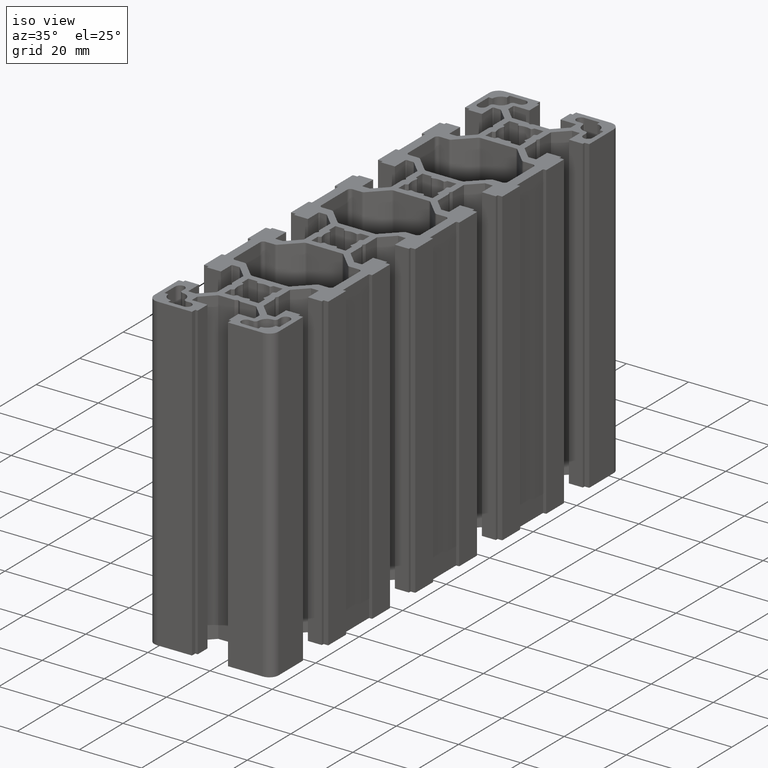
[diagram: clean part render]
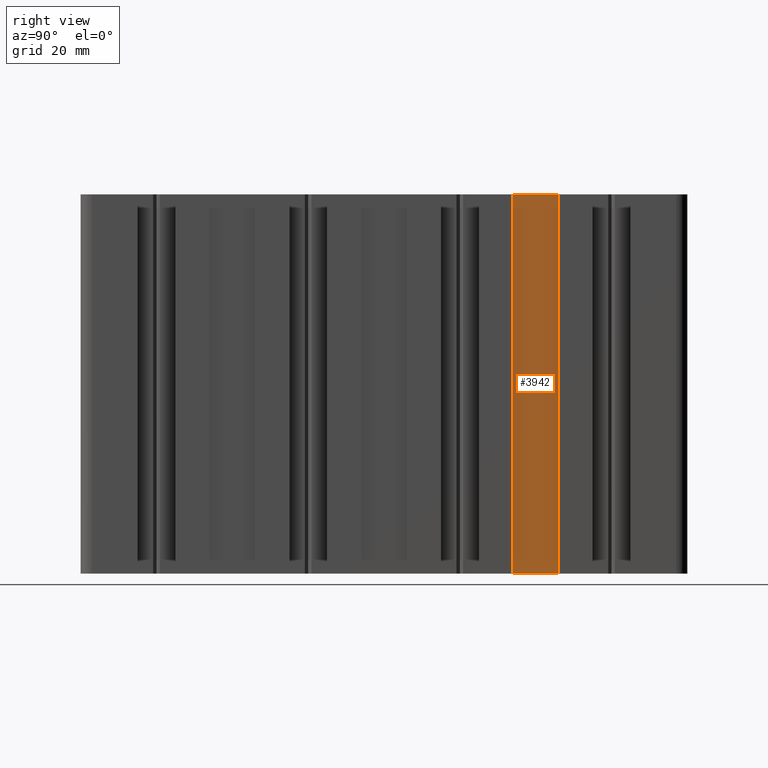
[diagram: tour spotlight — one face highlighted and labeled with its STEP entity id]
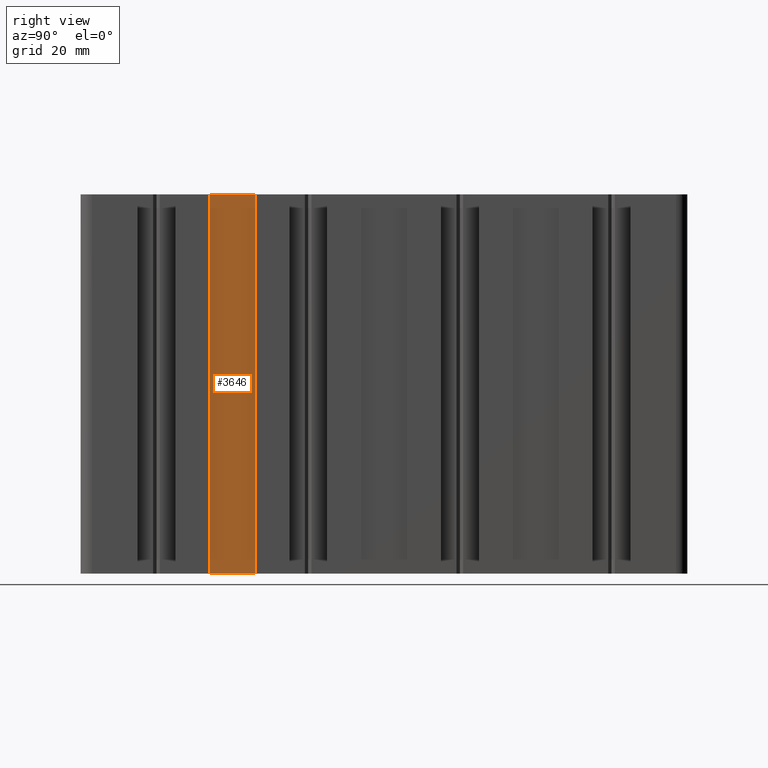
[diagram: tour spotlight — one face highlighted and labeled with its STEP entity id]
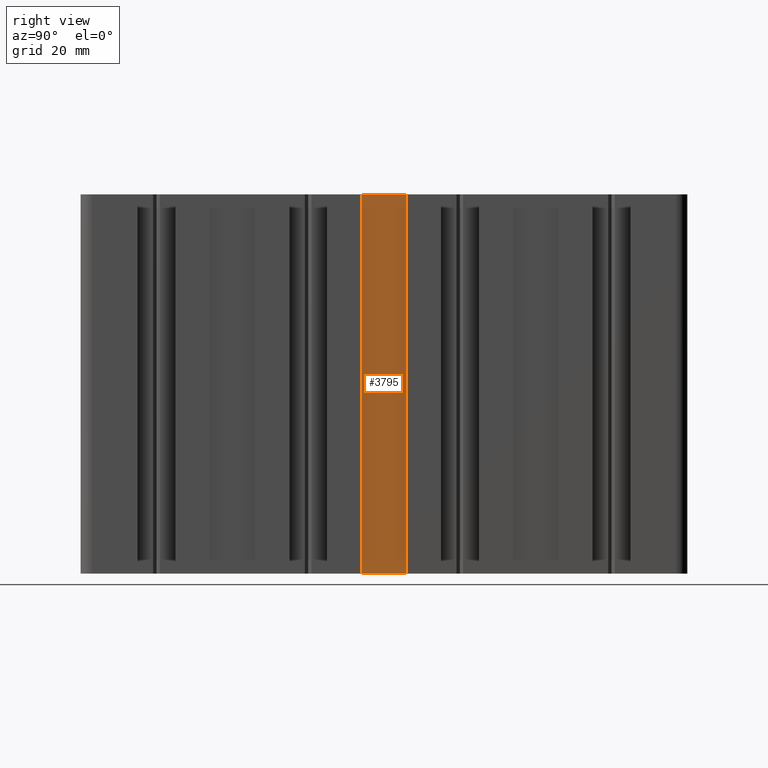
[diagram: tour spotlight — one face highlighted and labeled with its STEP entity id]
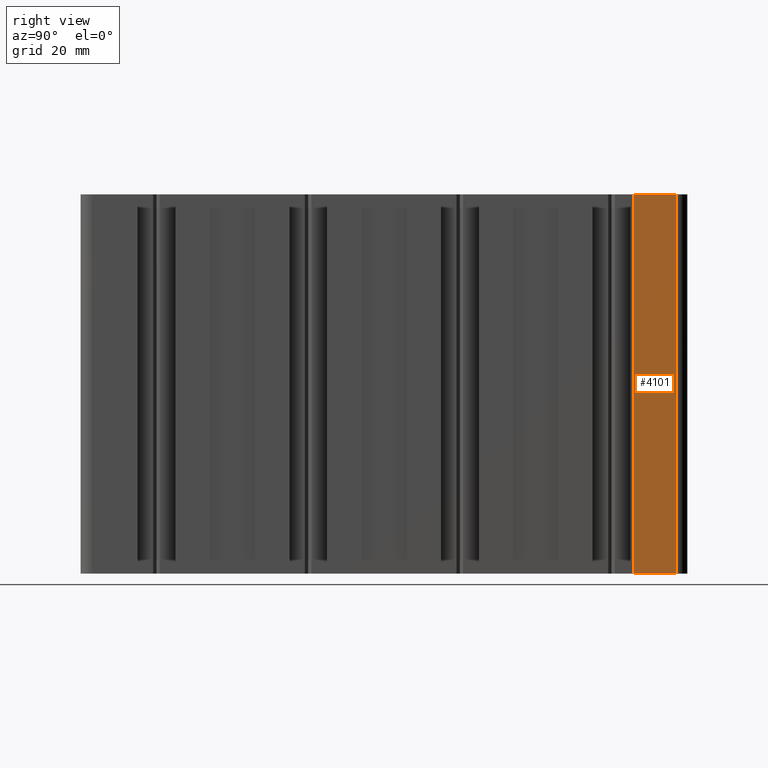
[diagram: tour spotlight — one face highlighted and labeled with its STEP entity id]
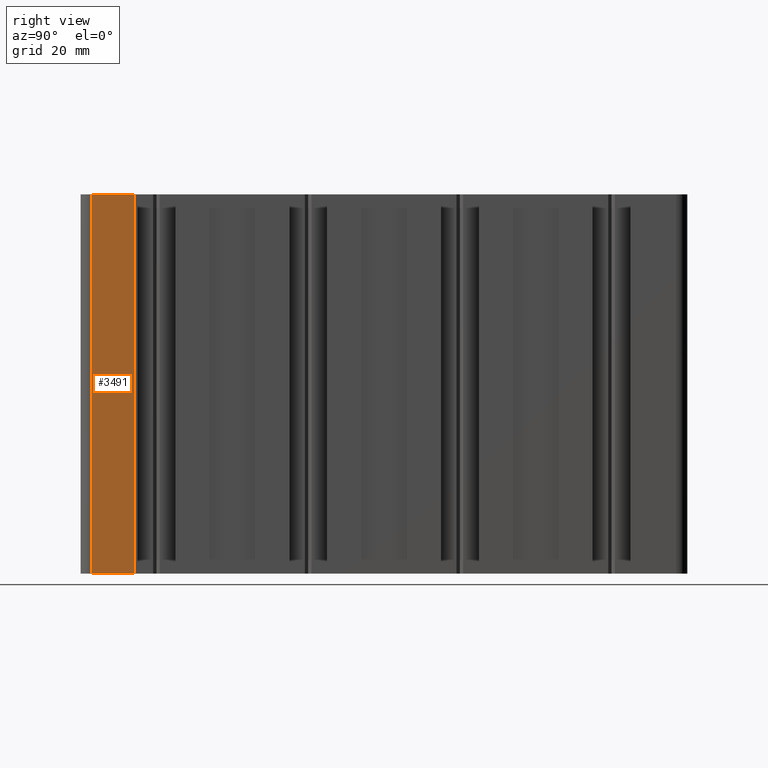
[diagram: tour spotlight — one face highlighted and labeled with its STEP entity id]
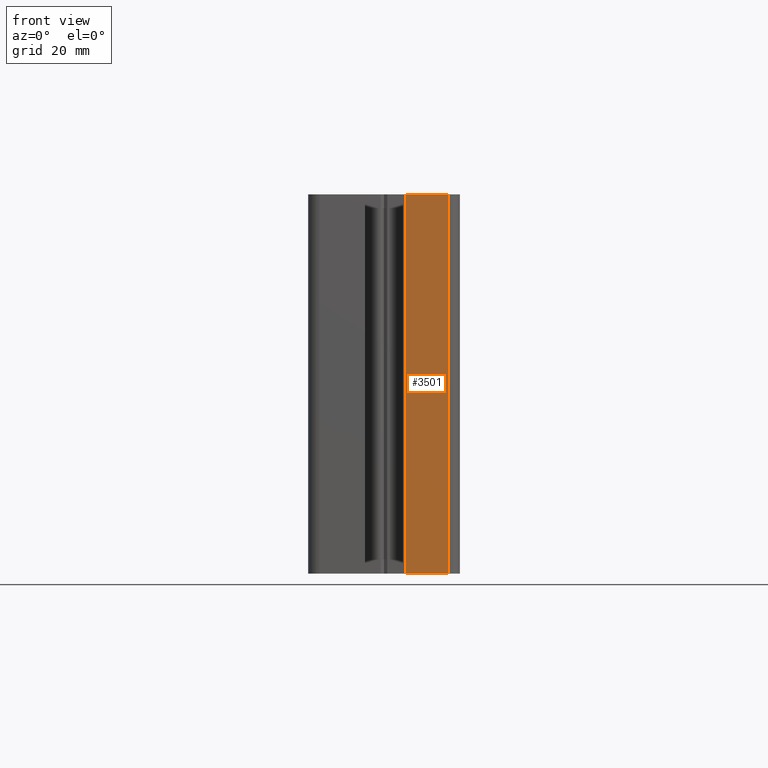
[diagram: tour spotlight — one face highlighted and labeled with its STEP entity id]
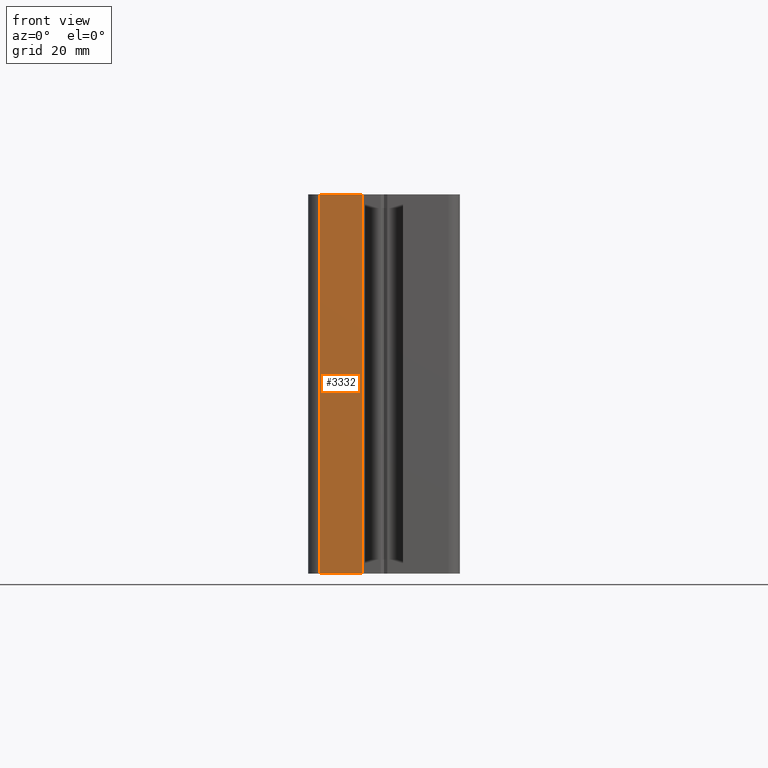
[diagram: tour spotlight — one face highlighted and labeled with its STEP entity id]
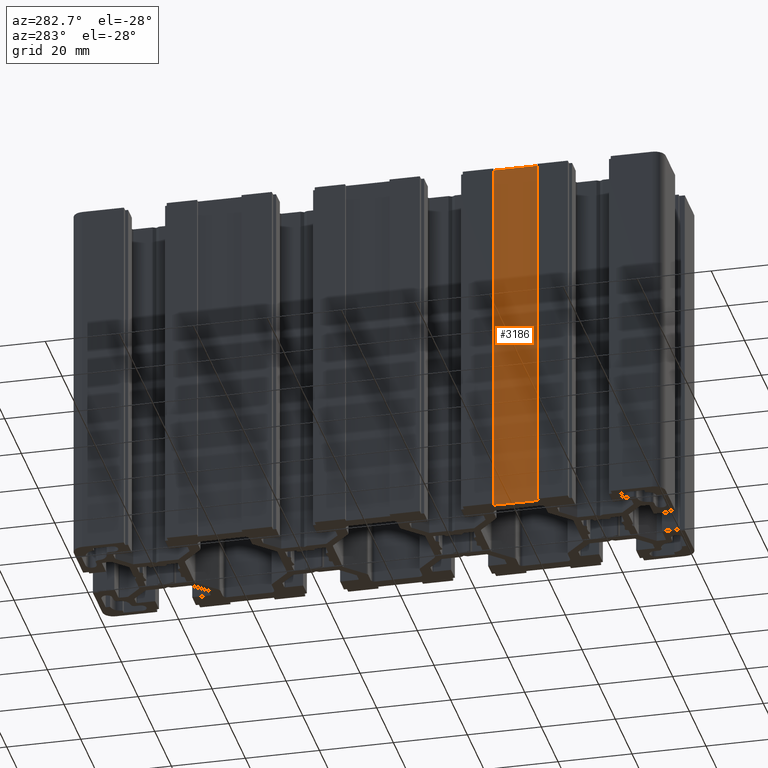
[diagram: tour spotlight — one face highlighted and labeled with its STEP entity id]
A machine part: a face-by-face anatomy tour. The part has 470 B-rep faces; the first image is the clean iso view, then the 8 largest visible faces are spotlighted one at a time (largest first), each with its STEP entity span.

Face 1 — right view, entity #3942. In plain terms, the highlighted planar face has unit normal (-1, 0, 0).
Definition (entity closure, byte-faithful):
#796 = VERTEX_POINT ( 'NONE', #7524 ) ;
#798 = EDGE_CURVE ( 'NONE', #796, #799, #7523, .T. ) ;
#799 = VERTEX_POINT ( 'NONE', #7519 ) ;
#2144 = VERTEX_POINT ( 'NONE', #9911 ) ;
#2146 = EDGE_CURVE ( 'NONE', #2147, #2144, #9910, .T. ) ;
#2147 = VERTEX_POINT ( 'NONE', #9906 ) ;
#3942 = ADVANCED_FACE ( 'NONE', ( #12743 ), #12742, .F. ) ;
#3943 = EDGE_LOOP ( 'NONE', ( #3996, #3997, #3999, #4000 ) ) ;
#3996 = ORIENTED_EDGE ( 'NONE', *, *, #2146, .T. ) ;
#3997 = ORIENTED_EDGE ( 'NONE', *, *, #3998, .F. ) ;
#3998 = EDGE_CURVE ( 'NONE', #799, #2144, #12795, .T. ) ;
#3999 = ORIENTED_EDGE ( 'NONE', *, *, #798, .F. ) ;
#4000 = ORIENTED_EDGE ( 'NONE', *, *, #4015, .T. ) ;
#4015 = EDGE_CURVE ( 'NONE', #796, #2147, #12835, .T. ) ;
#7519 = CARTESIAN_POINT ( 'NONE',  ( 19.00000190734865100, 46.00000228881837900, 100.0000000000000000 ) ) ;
#7520 = DIRECTION ( 'NONE',  ( 0.0000000000000000000, 1.000000000000000000, 0.0000000000000000000 ) ) ;
#7521 = VECTOR ( 'NONE', #7520, 1000.000000000000000 ) ;
#7522 = CARTESIAN_POINT ( 'NONE',  ( 19.00000190734865100, 34.00000228881837900, 100.0000000000000000 ) ) ;
#7523 = LINE ( 'NONE', #7522, #7521 ) ;
#7524 = CARTESIAN_POINT ( 'NONE',  ( 19.00000190734865100, 34.00000228881837900, 100.0000000000000000 ) ) ;
#9906 = CARTESIAN_POINT ( 'NONE',  ( 19.00000190734865100, 34.00000228881837900, 0.0000000000000000000 ) ) ;
#9907 = DIRECTION ( 'NONE',  ( 0.0000000000000000000, 1.000000000000000000, 0.0000000000000000000 ) ) ;
#9908 = VECTOR ( 'NONE', #9907, 1000.000000000000000 ) ;
#9909 = CARTESIAN_POINT ( 'NONE',  ( 19.00000190734865100, 34.00000228881837900, 0.0000000000000000000 ) ) ;
#9910 = LINE ( 'NONE', #9909, #9908 ) ;
#9911 = CARTESIAN_POINT ( 'NONE',  ( 19.00000190734865100, 46.00000228881837900, 0.0000000000000000000 ) ) ;
#12738 = DIRECTION ( 'NONE',  ( 0.0000000000000000000, 0.0000000000000000000, 1.000000000000000000 ) ) ;
#12739 = DIRECTION ( 'NONE',  ( -1.000000000000000000, 0.0000000000000000000, 0.0000000000000000000 ) ) ;
#12740 = CARTESIAN_POINT ( 'NONE',  ( 19.00000190734865100, 34.00000228881837900, 100.0000000000000000 ) ) ;
#12741 = AXIS2_PLACEMENT_3D ( 'NONE', #12740, #12739, #12738 ) ;
#12742 = PLANE ( 'NONE',  #12741 ) ;
#12743 = FACE_OUTER_BOUND ( 'NONE', #3943, .T. ) ;
#12795 = LINE ( 'NONE', #12858, #12857 ) ;
#12832 = DIRECTION ( 'NONE',  ( 0.0000000000000000000, 0.0000000000000000000, -1.000000000000000000 ) ) ;
#12833 = VECTOR ( 'NONE', #12832, 1000.000000000000000 ) ;
#12834 = CARTESIAN_POINT ( 'NONE',  ( 19.00000190734865100, 34.00000228881837900, 100.0000000000000000 ) ) ;
#12835 = LINE ( 'NONE', #12834, #12833 ) ;
#12856 = DIRECTION ( 'NONE',  ( 0.0000000000000000000, 0.0000000000000000000, -1.000000000000000000 ) ) ;
#12857 = VECTOR ( 'NONE', #12856, 1000.000000000000000 ) ;
#12858 = CARTESIAN_POINT ( 'NONE',  ( 19.00000190734865100, 46.00000228881837900, 100.0000000000000000 ) ) ;

Face 2 — right view, entity #3646. In plain terms, the highlighted planar face has unit normal (-1, 0, 0).
Definition (entity closure, byte-faithful):
#732 = VERTEX_POINT ( 'NONE', #7442 ) ;
#734 = EDGE_CURVE ( 'NONE', #732, #735, #7441, .T. ) ;
#735 = VERTEX_POINT ( 'NONE', #7437 ) ;
#2209 = VERTEX_POINT ( 'NONE', #10052 ) ;
#2211 = EDGE_CURVE ( 'NONE', #2212, #2209, #10051, .T. ) ;
#2212 = VERTEX_POINT ( 'NONE', #10047 ) ;
#3643 = EDGE_CURVE ( 'NONE', #732, #2212, #12308, .T. ) ;
#3646 = ADVANCED_FACE ( 'NONE', ( #12304 ), #12303, .F. ) ;
#3647 = EDGE_LOOP ( 'NONE', ( #3648, #3649, #3651, #3652 ) ) ;
#3648 = ORIENTED_EDGE ( 'NONE', *, *, #2211, .T. ) ;
#3649 = ORIENTED_EDGE ( 'NONE', *, *, #3650, .F. ) ;
#3650 = EDGE_CURVE ( 'NONE', #735, #2209, #12364, .T. ) ;
#3651 = ORIENTED_EDGE ( 'NONE', *, *, #734, .F. ) ;
#3652 = ORIENTED_EDGE ( 'NONE', *, *, #3643, .T. ) ;
#7437 = CARTESIAN_POINT ( 'NONE',  ( 19.00000190734865100, -34.00000152587885800, 100.0000000000000000 ) ) ;
#7438 = DIRECTION ( 'NONE',  ( 0.0000000000000000000, 1.000000000000000000, 0.0000000000000000000 ) ) ;
#7439 = VECTOR ( 'NONE', #7438, 1000.000000000000000 ) ;
#7440 = CARTESIAN_POINT ( 'NONE',  ( 19.00000190734865100, -34.00000152587885800, 100.0000000000000000 ) ) ;
#7441 = LINE ( 'NONE', #7440, #7439 ) ;
#7442 = CARTESIAN_POINT ( 'NONE',  ( 19.00000190734865100, -46.00000152587885800, 100.0000000000000000 ) ) ;
#10047 = CARTESIAN_POINT ( 'NONE',  ( 19.00000190734865100, -46.00000152587885800, 0.0000000000000000000 ) ) ;
#10048 = DIRECTION ( 'NONE',  ( 0.0000000000000000000, 1.000000000000000000, 0.0000000000000000000 ) ) ;
#10049 = VECTOR ( 'NONE', #10048, 1000.000000000000000 ) ;
#10050 = CARTESIAN_POINT ( 'NONE',  ( 19.00000190734865100, -34.00000152587885800, 0.0000000000000000000 ) ) ;
#10051 = LINE ( 'NONE', #10050, #10049 ) ;
#10052 = CARTESIAN_POINT ( 'NONE',  ( 19.00000190734865100, -34.00000152587885800, 0.0000000000000000000 ) ) ;
#12299 = DIRECTION ( 'NONE',  ( 0.0000000000000000000, 0.0000000000000000000, 1.000000000000000000 ) ) ;
#12300 = DIRECTION ( 'NONE',  ( -1.000000000000000000, 0.0000000000000000000, 0.0000000000000000000 ) ) ;
#12301 = CARTESIAN_POINT ( 'NONE',  ( 19.00000190734865100, -34.00000152587885800, 100.0000000000000000 ) ) ;
#12302 = AXIS2_PLACEMENT_3D ( 'NONE', #12301, #12300, #12299 ) ;
#12303 = PLANE ( 'NONE',  #12302 ) ;
#12304 = FACE_OUTER_BOUND ( 'NONE', #3647, .T. ) ;
#12305 = DIRECTION ( 'NONE',  ( 0.0000000000000000000, 0.0000000000000000000, -1.000000000000000000 ) ) ;
#12306 = VECTOR ( 'NONE', #12305, 1000.000000000000000 ) ;
#12307 = CARTESIAN_POINT ( 'NONE',  ( 19.00000190734865100, -46.00000152587885800, 100.0000000000000000 ) ) ;
#12308 = LINE ( 'NONE', #12307, #12306 ) ;
#12361 = DIRECTION ( 'NONE',  ( 0.0000000000000000000, 0.0000000000000000000, -1.000000000000000000 ) ) ;
#12362 = VECTOR ( 'NONE', #12361, 1000.000000000000000 ) ;
#12363 = CARTESIAN_POINT ( 'NONE',  ( 19.00000190734865100, -34.00000152587885800, 100.0000000000000000 ) ) ;
#12364 = LINE ( 'NONE', #12363, #12362 ) ;

Face 3 — right view, entity #3795. In plain terms, the highlighted planar face has unit normal (-1, 0, 0).
Definition (entity closure, byte-faithful):
#751 = VERTEX_POINT ( 'NONE', #7418 ) ;
#753 = EDGE_CURVE ( 'NONE', #751, #754, #7417, .T. ) ;
#754 = VERTEX_POINT ( 'NONE', #7475 ) ;
#2163 = VERTEX_POINT ( 'NONE', #9942 ) ;
#2190 = VERTEX_POINT ( 'NONE', #10022 ) ;
#2192 = EDGE_CURVE ( 'NONE', #2163, #2190, #10021, .T. ) ;
#3792 = EDGE_CURVE ( 'NONE', #751, #2163, #12553, .T. ) ;
#3795 = ADVANCED_FACE ( 'NONE', ( #12549 ), #12548, .F. ) ;
#3796 = EDGE_LOOP ( 'NONE', ( #3797, #3798, #3850, #3851 ) ) ;
#3797 = ORIENTED_EDGE ( 'NONE', *, *, #2192, .T. ) ;
#3798 = ORIENTED_EDGE ( 'NONE', *, *, #3799, .F. ) ;
#3799 = EDGE_CURVE ( 'NONE', #754, #2190, #12543, .T. ) ;
#3850 = ORIENTED_EDGE ( 'NONE', *, *, #753, .F. ) ;
#3851 = ORIENTED_EDGE ( 'NONE', *, *, #3792, .T. ) ;
#7417 = LINE ( 'NONE', #7478, #7477 ) ;
#7418 = CARTESIAN_POINT ( 'NONE',  ( 19.00000190734865100, -6.000000000000000000, 100.0000000000000000 ) ) ;
#7475 = CARTESIAN_POINT ( 'NONE',  ( 19.00000190734865100, 6.000000000000000000, 100.0000000000000000 ) ) ;
#7476 = DIRECTION ( 'NONE',  ( 0.0000000000000000000, 1.000000000000000000, 0.0000000000000000000 ) ) ;
#7477 = VECTOR ( 'NONE', #7476, 1000.000000000000000 ) ;
#7478 = CARTESIAN_POINT ( 'NONE',  ( 19.00000190734865100, 6.000000000000000000, 100.0000000000000000 ) ) ;
#9942 = CARTESIAN_POINT ( 'NONE',  ( 19.00000190734865100, -6.000000000000000000, 0.0000000000000000000 ) ) ;
#10018 = DIRECTION ( 'NONE',  ( 0.0000000000000000000, 1.000000000000000000, 0.0000000000000000000 ) ) ;
#10019 = VECTOR ( 'NONE', #10018, 1000.000000000000000 ) ;
#10020 = CARTESIAN_POINT ( 'NONE',  ( 19.00000190734865100, 6.000000000000000000, 0.0000000000000000000 ) ) ;
#10021 = LINE ( 'NONE', #10020, #10019 ) ;
#10022 = CARTESIAN_POINT ( 'NONE',  ( 19.00000190734865100, 6.000000000000000000, 0.0000000000000000000 ) ) ;
#12540 = DIRECTION ( 'NONE',  ( 0.0000000000000000000, 0.0000000000000000000, -1.000000000000000000 ) ) ;
#12541 = VECTOR ( 'NONE', #12540, 1000.000000000000000 ) ;
#12542 = CARTESIAN_POINT ( 'NONE',  ( 19.00000190734865100, 6.000000000000000000, 100.0000000000000000 ) ) ;
#12543 = LINE ( 'NONE', #12542, #12541 ) ;
#12544 = DIRECTION ( 'NONE',  ( 0.0000000000000000000, 0.0000000000000000000, 1.000000000000000000 ) ) ;
#12545 = DIRECTION ( 'NONE',  ( -1.000000000000000000, 0.0000000000000000000, 0.0000000000000000000 ) ) ;
#12546 = CARTESIAN_POINT ( 'NONE',  ( 19.00000190734865100, 6.000000000000000000, 100.0000000000000000 ) ) ;
#12547 = AXIS2_PLACEMENT_3D ( 'NONE', #12546, #12545, #12544 ) ;
#12548 = PLANE ( 'NONE',  #12547 ) ;
#12549 = FACE_OUTER_BOUND ( 'NONE', #3796, .T. ) ;
#12550 = DIRECTION ( 'NONE',  ( 0.0000000000000000000, 0.0000000000000000000, -1.000000000000000000 ) ) ;
#12551 = VECTOR ( 'NONE', #12550, 1000.000000000000000 ) ;
#12552 = CARTESIAN_POINT ( 'NONE',  ( 19.00000190734865100, -6.000000000000000000, 100.0000000000000000 ) ) ;
#12553 = LINE ( 'NONE', #12552, #12551 ) ;

Face 4 — right view, entity #4101. In plain terms, the highlighted planar face has unit normal (-1, 0, 0).
Definition (entity closure, byte-faithful):
#905 = EDGE_CURVE ( 'NONE', #933, #906, #7716, .T. ) ;
#906 = VERTEX_POINT ( 'NONE', #7712 ) ;
#933 = VERTEX_POINT ( 'NONE', #7727 ) ;
#2011 = VERTEX_POINT ( 'NONE', #9702 ) ;
#2036 = VERTEX_POINT ( 'NONE', #9722 ) ;
#2038 = EDGE_CURVE ( 'NONE', #2011, #2036, #9721, .T. ) ;
#4098 = EDGE_CURVE ( 'NONE', #933, #2011, #12981, .T. ) ;
#4101 = ADVANCED_FACE ( 'NONE', ( #12977 ), #12976, .F. ) ;
#4102 = EDGE_LOOP ( 'NONE', ( #4152, #4153, #4155, #4156 ) ) ;
#4152 = ORIENTED_EDGE ( 'NONE', *, *, #2038, .T. ) ;
#4153 = ORIENTED_EDGE ( 'NONE', *, *, #4154, .F. ) ;
#4154 = EDGE_CURVE ( 'NONE', #906, #2036, #13030, .T. ) ;
#4155 = ORIENTED_EDGE ( 'NONE', *, *, #905, .F. ) ;
#4156 = ORIENTED_EDGE ( 'NONE', *, *, #4098, .T. ) ;
#7712 = CARTESIAN_POINT ( 'NONE',  ( 20.00000000000000000, 77.00000209808349900, 100.0000000000000000 ) ) ;
#7713 = DIRECTION ( 'NONE',  ( 0.0000000000000000000, 1.000000000000000000, 0.0000000000000000000 ) ) ;
#7714 = VECTOR ( 'NONE', #7713, 1000.000000000000000 ) ;
#7715 = CARTESIAN_POINT ( 'NONE',  ( 20.00000000000000000, 65.80000228881836200, 100.0000000000000000 ) ) ;
#7716 = LINE ( 'NONE', #7715, #7714 ) ;
#7727 = CARTESIAN_POINT ( 'NONE',  ( 20.00000000000000000, 65.80000228881836200, 100.0000000000000000 ) ) ;
#9702 = CARTESIAN_POINT ( 'NONE',  ( 20.00000000000000000, 65.80000228881836200, 0.0000000000000000000 ) ) ;
#9720 = CARTESIAN_POINT ( 'NONE',  ( 20.00000000000000000, 65.80000228881836200, 0.0000000000000000000 ) ) ;
#9721 = LINE ( 'NONE', #9720, #9782 ) ;
#9722 = CARTESIAN_POINT ( 'NONE',  ( 20.00000000000000000, 77.00000209808349900, 0.0000000000000000000 ) ) ;
#9781 = DIRECTION ( 'NONE',  ( 0.0000000000000000000, 1.000000000000000000, 0.0000000000000000000 ) ) ;
#9782 = VECTOR ( 'NONE', #9781, 1000.000000000000000 ) ;
#12972 = DIRECTION ( 'NONE',  ( 0.0000000000000000000, 0.0000000000000000000, 1.000000000000000000 ) ) ;
#12973 = DIRECTION ( 'NONE',  ( -1.000000000000000000, 0.0000000000000000000, 0.0000000000000000000 ) ) ;
#12974 = CARTESIAN_POINT ( 'NONE',  ( 20.00000000000000000, 65.80000228881836200, 100.0000000000000000 ) ) ;
#12975 = AXIS2_PLACEMENT_3D ( 'NONE', #12974, #12973, #12972 ) ;
#12976 = PLANE ( 'NONE',  #12975 ) ;
#12977 = FACE_OUTER_BOUND ( 'NONE', #4102, .T. ) ;
#12978 = DIRECTION ( 'NONE',  ( 0.0000000000000000000, 0.0000000000000000000, -1.000000000000000000 ) ) ;
#12979 = VECTOR ( 'NONE', #12978, 1000.000000000000000 ) ;
#12980 = CARTESIAN_POINT ( 'NONE',  ( 20.00000000000000000, 65.80000228881836200, 100.0000000000000000 ) ) ;
#12981 = LINE ( 'NONE', #12980, #12979 ) ;
#13027 = DIRECTION ( 'NONE',  ( 0.0000000000000000000, 0.0000000000000000000, -1.000000000000000000 ) ) ;
#13028 = VECTOR ( 'NONE', #13027, 1000.000000000000000 ) ;
#13029 = CARTESIAN_POINT ( 'NONE',  ( 20.00000000000000000, 77.00000209808349900, 100.0000000000000000 ) ) ;
#13030 = LINE ( 'NONE', #13029, #13028 ) ;

Face 5 — right view, entity #3491. In plain terms, the highlighted planar face has unit normal (-1, 0, 0).
Definition (entity closure, byte-faithful):
#626 = VERTEX_POINT ( 'NONE', #7248 ) ;
#694 = EDGE_CURVE ( 'NONE', #626, #695, #7379, .T. ) ;
#695 = VERTEX_POINT ( 'NONE', #7375 ) ;
#2249 = VERTEX_POINT ( 'NONE', #10108 ) ;
#2251 = EDGE_CURVE ( 'NONE', #2317, #2249, #10107, .T. ) ;
#2317 = VERTEX_POINT ( 'NONE', #10246 ) ;
#3488 = EDGE_CURVE ( 'NONE', #626, #2317, #12073, .T. ) ;
#3491 = ADVANCED_FACE ( 'NONE', ( #12069 ), #12068, .F. ) ;
#3492 = EDGE_LOOP ( 'NONE', ( #3493, #3494, #3496, #3547 ) ) ;
#3493 = ORIENTED_EDGE ( 'NONE', *, *, #2251, .T. ) ;
#3494 = ORIENTED_EDGE ( 'NONE', *, *, #3495, .F. ) ;
#3495 = EDGE_CURVE ( 'NONE', #695, #2249, #12127, .T. ) ;
#3496 = ORIENTED_EDGE ( 'NONE', *, *, #694, .F. ) ;
#3547 = ORIENTED_EDGE ( 'NONE', *, *, #3488, .T. ) ;
#7248 = CARTESIAN_POINT ( 'NONE',  ( 20.00000000000000400, -77.00000133514396300, 100.0000000000000000 ) ) ;
#7375 = CARTESIAN_POINT ( 'NONE',  ( 20.00000000000000000, -65.80000152587884100, 100.0000000000000000 ) ) ;
#7376 = DIRECTION ( 'NONE',  ( 0.0000000000000000000, 1.000000000000000000, 0.0000000000000000000 ) ) ;
#7377 = VECTOR ( 'NONE', #7376, 1000.000000000000000 ) ;
#7378 = CARTESIAN_POINT ( 'NONE',  ( 20.00000000000000000, -65.80000152587884100, 100.0000000000000000 ) ) ;
#7379 = LINE ( 'NONE', #7378, #7377 ) ;
#10104 = DIRECTION ( 'NONE',  ( 0.0000000000000000000, 1.000000000000000000, 0.0000000000000000000 ) ) ;
#10105 = VECTOR ( 'NONE', #10104, 1000.000000000000000 ) ;
#10106 = CARTESIAN_POINT ( 'NONE',  ( 20.00000000000000000, -65.80000152587884100, 0.0000000000000000000 ) ) ;
#10107 = LINE ( 'NONE', #10106, #10105 ) ;
#10108 = CARTESIAN_POINT ( 'NONE',  ( 20.00000000000000000, -65.80000152587884100, 0.0000000000000000000 ) ) ;
#10246 = CARTESIAN_POINT ( 'NONE',  ( 20.00000000000000400, -77.00000133514396300, 0.0000000000000000000 ) ) ;
#12068 = PLANE ( 'NONE',  #12131 ) ;
#12069 = FACE_OUTER_BOUND ( 'NONE', #3492, .T. ) ;
#12070 = DIRECTION ( 'NONE',  ( 0.0000000000000000000, 0.0000000000000000000, -1.000000000000000000 ) ) ;
#12071 = VECTOR ( 'NONE', #12070, 1000.000000000000000 ) ;
#12072 = CARTESIAN_POINT ( 'NONE',  ( 20.00000000000000400, -77.00000133514396300, 100.0000000000000000 ) ) ;
#12073 = LINE ( 'NONE', #12072, #12071 ) ;
#12124 = DIRECTION ( 'NONE',  ( 0.0000000000000000000, 0.0000000000000000000, -1.000000000000000000 ) ) ;
#12125 = VECTOR ( 'NONE', #12124, 1000.000000000000000 ) ;
#12126 = CARTESIAN_POINT ( 'NONE',  ( 20.00000000000000000, -65.80000152587884100, 100.0000000000000000 ) ) ;
#12127 = LINE ( 'NONE', #12126, #12125 ) ;
#12128 = DIRECTION ( 'NONE',  ( 0.0000000000000000000, 0.0000000000000000000, 1.000000000000000000 ) ) ;
#12129 = DIRECTION ( 'NONE',  ( -1.000000000000000000, 0.0000000000000000000, 0.0000000000000000000 ) ) ;
#12130 = CARTESIAN_POINT ( 'NONE',  ( 20.00000000000000000, -65.80000152587884100, 100.0000000000000000 ) ) ;
#12131 = AXIS2_PLACEMENT_3D ( 'NONE', #12130, #12129, #12128 ) ;

Face 6 — front view, entity #3501. In plain terms, the highlighted planar face has unit normal (0, 1, 0).
Definition (entity closure, byte-faithful):
#620 = VERTEX_POINT ( 'NONE', #7197 ) ;
#622 = EDGE_CURVE ( 'NONE', #620, #623, #7258, .T. ) ;
#623 = VERTEX_POINT ( 'NONE', #7254 ) ;
#2320 = VERTEX_POINT ( 'NONE', #10240 ) ;
#2322 = EDGE_CURVE ( 'NONE', #2323, #2320, #10239, .T. ) ;
#2323 = VERTEX_POINT ( 'NONE', #10235 ) ;
#3498 = EDGE_CURVE ( 'NONE', #620, #2323, #12123, .T. ) ;
#3501 = ADVANCED_FACE ( 'NONE', ( #12119 ), #12118, .F. ) ;
#3502 = EDGE_LOOP ( 'NONE', ( #3503, #3504, #3506, #3507 ) ) ;
#3503 = ORIENTED_EDGE ( 'NONE', *, *, #2322, .T. ) ;
#3504 = ORIENTED_EDGE ( 'NONE', *, *, #3505, .F. ) ;
#3505 = EDGE_CURVE ( 'NONE', #623, #2320, #12113, .T. ) ;
#3506 = ORIENTED_EDGE ( 'NONE', *, *, #622, .F. ) ;
#3507 = ORIENTED_EDGE ( 'NONE', *, *, #3498, .T. ) ;
#7197 = CARTESIAN_POINT ( 'NONE',  ( 5.800000190734873900, -80.00000133514396300, 100.0000000000000000 ) ) ;
#7254 = CARTESIAN_POINT ( 'NONE',  ( 17.00000000000000000, -80.00000133514396300, 100.0000000000000000 ) ) ;
#7255 = DIRECTION ( 'NONE',  ( 1.000000000000000000, 0.0000000000000000000, 0.0000000000000000000 ) ) ;
#7256 = VECTOR ( 'NONE', #7255, 1000.000000000000000 ) ;
#7257 = CARTESIAN_POINT ( 'NONE',  ( 17.00000000000000000, -80.00000133514396300, 100.0000000000000000 ) ) ;
#7258 = LINE ( 'NONE', #7257, #7256 ) ;
#10235 = CARTESIAN_POINT ( 'NONE',  ( 5.800000190734873900, -80.00000133514396300, 0.0000000000000000000 ) ) ;
#10236 = DIRECTION ( 'NONE',  ( 1.000000000000000000, 0.0000000000000000000, 0.0000000000000000000 ) ) ;
#10237 = VECTOR ( 'NONE', #10236, 1000.000000000000000 ) ;
#10238 = CARTESIAN_POINT ( 'NONE',  ( 17.00000000000000000, -80.00000133514396300, 0.0000000000000000000 ) ) ;
#10239 = LINE ( 'NONE', #10238, #10237 ) ;
#10240 = CARTESIAN_POINT ( 'NONE',  ( 17.00000000000000000, -80.00000133514396300, 0.0000000000000000000 ) ) ;
#12110 = DIRECTION ( 'NONE',  ( 0.0000000000000000000, 0.0000000000000000000, -1.000000000000000000 ) ) ;
#12111 = VECTOR ( 'NONE', #12110, 1000.000000000000000 ) ;
#12112 = CARTESIAN_POINT ( 'NONE',  ( 17.00000000000000000, -80.00000133514396300, 100.0000000000000000 ) ) ;
#12113 = LINE ( 'NONE', #12112, #12111 ) ;
#12114 = DIRECTION ( 'NONE',  ( 0.0000000000000000000, 0.0000000000000000000, 1.000000000000000000 ) ) ;
#12115 = DIRECTION ( 'NONE',  ( 0.0000000000000000000, 1.000000000000000000, 0.0000000000000000000 ) ) ;
#12116 = CARTESIAN_POINT ( 'NONE',  ( 17.00000000000000000, -80.00000133514396300, 100.0000000000000000 ) ) ;
#12117 = AXIS2_PLACEMENT_3D ( 'NONE', #12116, #12115, #12114 ) ;
#12118 = PLANE ( 'NONE',  #12117 ) ;
#12119 = FACE_OUTER_BOUND ( 'NONE', #3502, .T. ) ;
#12120 = DIRECTION ( 'NONE',  ( 0.0000000000000000000, 0.0000000000000000000, -1.000000000000000000 ) ) ;
#12121 = VECTOR ( 'NONE', #12120, 1000.000000000000000 ) ;
#12122 = CARTESIAN_POINT ( 'NONE',  ( 5.800000190734873900, -80.00000133514396300, 100.0000000000000000 ) ) ;
#12123 = LINE ( 'NONE', #12122, #12121 ) ;

Face 7 — front view, entity #3332. In plain terms, the highlighted planar face has unit normal (0, 1, 0).
Definition (entity closure, byte-faithful):
#587 = VERTEX_POINT ( 'NONE', #7192 ) ;
#589 = EDGE_CURVE ( 'NONE', #587, #590, #7191, .T. ) ;
#590 = VERTEX_POINT ( 'NONE', #7187 ) ;
#2354 = VERTEX_POINT ( 'NONE', #10306 ) ;
#2356 = EDGE_CURVE ( 'NONE', #2357, #2354, #10305, .T. ) ;
#2357 = VERTEX_POINT ( 'NONE', #10301 ) ;
#3332 = ADVANCED_FACE ( 'NONE', ( #11898 ), #11897, .F. ) ;
#3333 = EDGE_LOOP ( 'NONE', ( #3334, #3335, #3337, #3338 ) ) ;
#3334 = ORIENTED_EDGE ( 'NONE', *, *, #2356, .T. ) ;
#3335 = ORIENTED_EDGE ( 'NONE', *, *, #3336, .F. ) ;
#3336 = EDGE_CURVE ( 'NONE', #590, #2354, #11892, .T. ) ;
#3337 = ORIENTED_EDGE ( 'NONE', *, *, #589, .F. ) ;
#3338 = ORIENTED_EDGE ( 'NONE', *, *, #3405, .T. ) ;
#3405 = EDGE_CURVE ( 'NONE', #587, #2357, #11990, .T. ) ;
#7187 = CARTESIAN_POINT ( 'NONE',  ( -5.800000190734852600, -80.00000133514396300, 100.0000000000000000 ) ) ;
#7188 = DIRECTION ( 'NONE',  ( 1.000000000000000000, 0.0000000000000000000, 0.0000000000000000000 ) ) ;
#7189 = VECTOR ( 'NONE', #7188, 1000.000000000000000 ) ;
#7190 = CARTESIAN_POINT ( 'NONE',  ( -16.99999999999998900, -80.00000133514396300, 100.0000000000000000 ) ) ;
#7191 = LINE ( 'NONE', #7190, #7189 ) ;
#7192 = CARTESIAN_POINT ( 'NONE',  ( -16.99999999999998900, -80.00000133514396300, 100.0000000000000000 ) ) ;
#10301 = CARTESIAN_POINT ( 'NONE',  ( -16.99999999999998900, -80.00000133514396300, 0.0000000000000000000 ) ) ;
#10302 = DIRECTION ( 'NONE',  ( 1.000000000000000000, 0.0000000000000000000, 0.0000000000000000000 ) ) ;
#10303 = VECTOR ( 'NONE', #10302, 1000.000000000000000 ) ;
#10304 = CARTESIAN_POINT ( 'NONE',  ( -16.99999999999998900, -80.00000133514396300, 0.0000000000000000000 ) ) ;
#10305 = LINE ( 'NONE', #10304, #10303 ) ;
#10306 = CARTESIAN_POINT ( 'NONE',  ( -5.800000190734852600, -80.00000133514396300, 0.0000000000000000000 ) ) ;
#11889 = DIRECTION ( 'NONE',  ( 0.0000000000000000000, 0.0000000000000000000, -1.000000000000000000 ) ) ;
#11890 = VECTOR ( 'NONE', #11889, 1000.000000000000000 ) ;
#11891 = CARTESIAN_POINT ( 'NONE',  ( -5.800000190734852600, -80.00000133514396300, 100.0000000000000000 ) ) ;
#11892 = LINE ( 'NONE', #11891, #11890 ) ;
#11893 = DIRECTION ( 'NONE',  ( 0.0000000000000000000, 0.0000000000000000000, 1.000000000000000000 ) ) ;
#11894 = DIRECTION ( 'NONE',  ( 0.0000000000000000000, 1.000000000000000000, 0.0000000000000000000 ) ) ;
#11895 = CARTESIAN_POINT ( 'NONE',  ( -16.99999999999998900, -80.00000133514396300, 100.0000000000000000 ) ) ;
#11896 = AXIS2_PLACEMENT_3D ( 'NONE', #11895, #11894, #11893 ) ;
#11897 = PLANE ( 'NONE',  #11896 ) ;
#11898 = FACE_OUTER_BOUND ( 'NONE', #3333, .T. ) ;
#11987 = DIRECTION ( 'NONE',  ( 0.0000000000000000000, 0.0000000000000000000, -1.000000000000000000 ) ) ;
#11988 = VECTOR ( 'NONE', #11987, 1000.000000000000000 ) ;
#11989 = CARTESIAN_POINT ( 'NONE',  ( -16.99999999999998900, -80.00000133514396300, 100.0000000000000000 ) ) ;
#11990 = LINE ( 'NONE', #11989, #11988 ) ;

Face 8 — auxiliary view, entity #3186. In plain terms, the highlighted planar face has unit normal (1, 0, 0).
Definition (entity closure, byte-faithful):
#539 = VERTEX_POINT ( 'NONE', #7086 ) ;
#541 = EDGE_CURVE ( 'NONE', #539, #542, #7085, .T. ) ;
#542 = VERTEX_POINT ( 'NONE', #7081 ) ;
#2403 = VERTEX_POINT ( 'NONE', #10348 ) ;
#2405 = EDGE_CURVE ( 'NONE', #2473, #2403, #10347, .T. ) ;
#2473 = VERTEX_POINT ( 'NONE', #10472 ) ;
#3186 = ADVANCED_FACE ( 'NONE', ( #11646 ), #11644, .F. ) ;
#3187 = EDGE_LOOP ( 'NONE', ( #3188, #3189, #3191, #3192 ) ) ;
#3188 = ORIENTED_EDGE ( 'NONE', *, *, #2405, .T. ) ;
#3189 = ORIENTED_EDGE ( 'NONE', *, *, #3190, .F. ) ;
#3190 = EDGE_CURVE ( 'NONE', #542, #2403, #11705, .T. ) ;
#3191 = ORIENTED_EDGE ( 'NONE', *, *, #541, .F. ) ;
#3192 = ORIENTED_EDGE ( 'NONE', *, *, #3207, .T. ) ;
#3207 = EDGE_CURVE ( 'NONE', #539, #2473, #11679, .T. ) ;
#7081 = CARTESIAN_POINT ( 'NONE',  ( -19.00000000000000000, -46.00000152587885800, 100.0000000000000000 ) ) ;
#7082 = DIRECTION ( 'NONE',  ( 0.0000000000000000000, -1.000000000000000000, 0.0000000000000000000 ) ) ;
#7083 = VECTOR ( 'NONE', #7082, 1000.000000000000000 ) ;
#7084 = CARTESIAN_POINT ( 'NONE',  ( -19.00000000000000000, -34.00000152587885800, 100.0000000000000000 ) ) ;
#7085 = LINE ( 'NONE', #7084, #7083 ) ;
#7086 = CARTESIAN_POINT ( 'NONE',  ( -19.00000000000000000, -34.00000152587885800, 100.0000000000000000 ) ) ;
#10344 = DIRECTION ( 'NONE',  ( 0.0000000000000000000, -1.000000000000000000, 0.0000000000000000000 ) ) ;
#10345 = VECTOR ( 'NONE', #10344, 1000.000000000000000 ) ;
#10346 = CARTESIAN_POINT ( 'NONE',  ( -19.00000000000000000, -34.00000152587885800, 0.0000000000000000000 ) ) ;
#10347 = LINE ( 'NONE', #10346, #10345 ) ;
#10348 = CARTESIAN_POINT ( 'NONE',  ( -19.00000000000000000, -46.00000152587885800, 0.0000000000000000000 ) ) ;
#10472 = CARTESIAN_POINT ( 'NONE',  ( -19.00000000000000000, -34.00000152587885800, 0.0000000000000000000 ) ) ;
#11640 = DIRECTION ( 'NONE',  ( 0.0000000000000000000, 0.0000000000000000000, -1.000000000000000000 ) ) ;
#11641 = DIRECTION ( 'NONE',  ( 1.000000000000000000, 0.0000000000000000000, 0.0000000000000000000 ) ) ;
#11642 = CARTESIAN_POINT ( 'NONE',  ( -19.00000000000000000, -34.00000152587885800, 100.0000000000000000 ) ) ;
#11643 = AXIS2_PLACEMENT_3D ( 'NONE', #11642, #11641, #11640 ) ;
#11644 = PLANE ( 'NONE',  #11643 ) ;
#11646 = FACE_OUTER_BOUND ( 'NONE', #3187, .T. ) ;
#11676 = DIRECTION ( 'NONE',  ( 0.0000000000000000000, 0.0000000000000000000, -1.000000000000000000 ) ) ;
#11677 = VECTOR ( 'NONE', #11676, 1000.000000000000000 ) ;
#11678 = CARTESIAN_POINT ( 'NONE',  ( -19.00000000000000000, -34.00000152587885800, 100.0000000000000000 ) ) ;
#11679 = LINE ( 'NONE', #11678, #11677 ) ;
#11702 = DIRECTION ( 'NONE',  ( 0.0000000000000000000, 0.0000000000000000000, -1.000000000000000000 ) ) ;
#11703 = VECTOR ( 'NONE', #11702, 1000.000000000000000 ) ;
#11704 = CARTESIAN_POINT ( 'NONE',  ( -19.00000000000000000, -46.00000152587885800, 100.0000000000000000 ) ) ;
#11705 = LINE ( 'NONE', #11704, #11703 ) ;